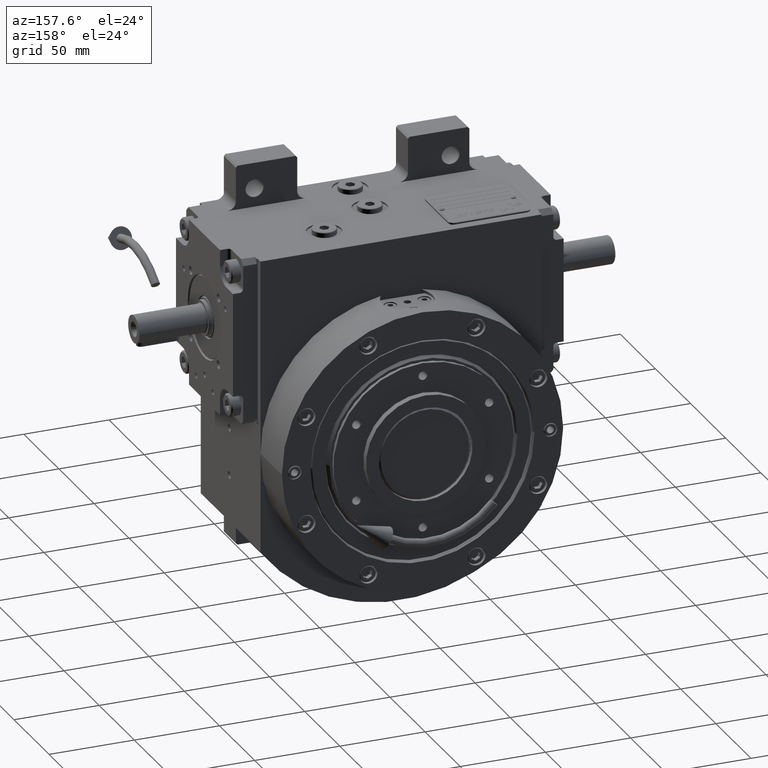
[diagram: clean part render]
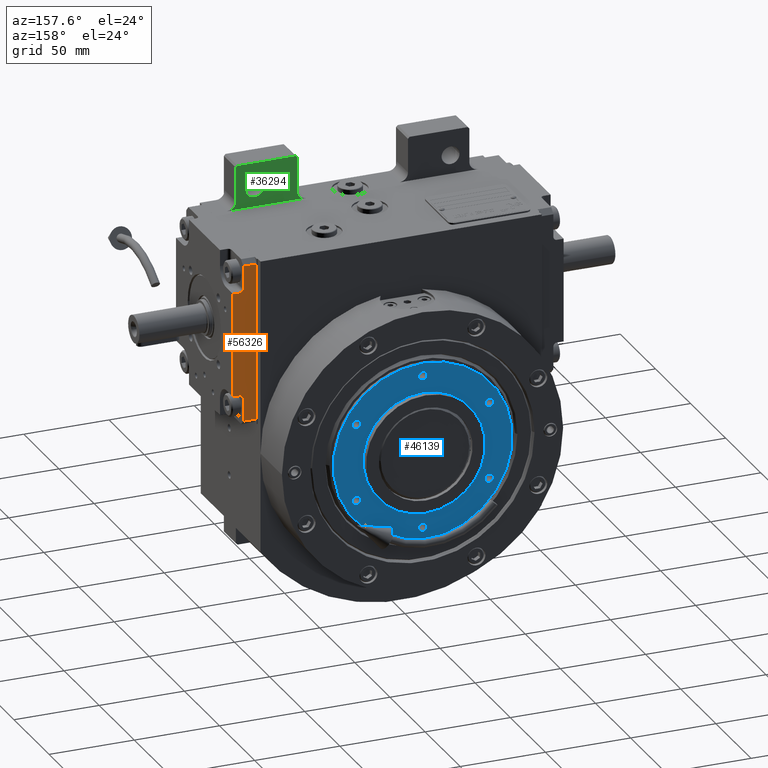
[diagram: same view with three faces highlighted in distinct colors, each labeled with its STEP entity id]
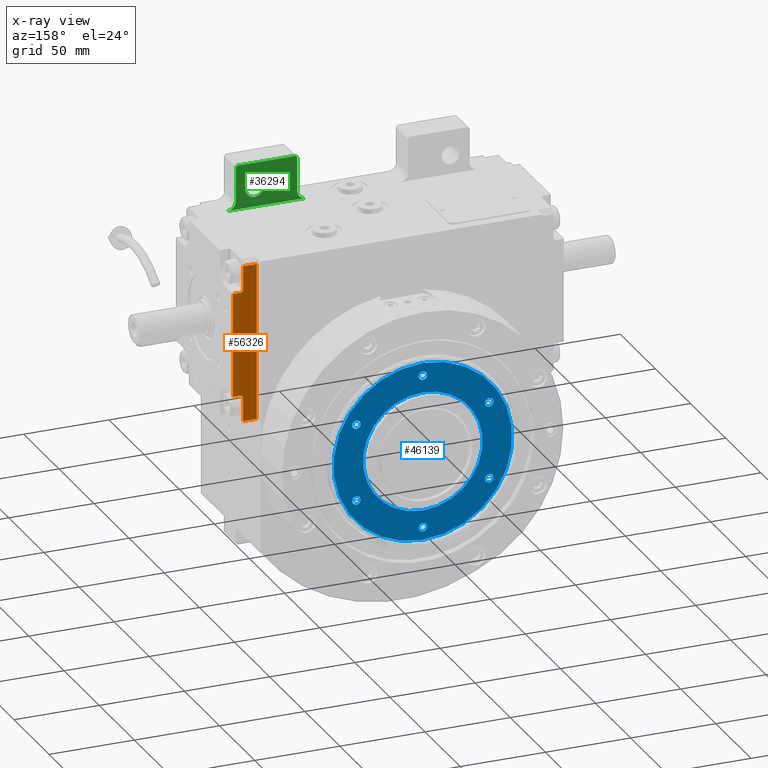
[diagram: x-ray of the same camera — body ghosted, the three highlighted faces saturated]
A machine part, auxiliary view with three faces highlighted in distinct colors.
The next image is the same camera in x-ray (body ghosted, the three faces saturated) — at least one of them is partly hidden behind the body in this view.
Their STEP definitions:

[orange] entity #56326 — the highlighted planar face has unit normal (-0, 1, -0).
#706 = EDGE_CURVE ( 'NONE', #50563, #62675, #1008, .T. ) ;
#896 = EDGE_CURVE ( 'NONE', #5100, #62675, #61007, .T. ) ;
#1008 = LINE ( 'NONE', #25572, #62006 ) ;
#1305 = DIRECTION ( 'NONE',  ( -6.938893903907222067E-15, 3.469446951953611033E-15, -1.000000000000000000 ) ) ;
#1478 = ORIENTED_EDGE ( 'NONE', *, *, #706, .F. ) ;
#2537 = VERTEX_POINT ( 'NONE', #58002 ) ;
#2674 = DIRECTION ( 'NONE',  ( -1.000000000000000000, 2.320366121466569912E-14, 8.437694987151285948E-15 ) ) ;
#2989 = FACE_OUTER_BOUND ( 'NONE', #63631, .T. ) ;
#3503 = LINE ( 'NONE', #18699, #30163 ) ;
#4555 = DIRECTION ( 'NONE',  ( 8.437694987151237039E-15, -2.109423746787905501E-15, 1.000000000000000000 ) ) ;
#5100 = VERTEX_POINT ( 'NONE', #10336 ) ;
#5522 = DIRECTION ( 'NONE',  ( 1.000000000000000000, -2.320366121466573698E-14, 8.437694987151233883E-15 ) ) ;
#6043 = LINE ( 'NONE', #39994, #57207 ) ;
#6573 = CARTESIAN_POINT ( 'NONE',  ( -40.50000000000000000, 1.054711873393898713E-12, -46.00000000000052580 ) ) ;
#6973 = ORIENTED_EDGE ( 'NONE', *, *, #17216, .T. ) ;
#8141 = DIRECTION ( 'NONE',  ( 8.437694987151237039E-15, -2.109423746787905501E-15, 1.000000000000000000 ) ) ;
#10073 = DIRECTION ( 'NONE',  ( -2.320366121466573698E-14, 1.000000000000000000, -2.109423746787906290E-15 ) ) ;
#10325 = VECTOR ( 'NONE', #25456, 1000.000000000000000 ) ;
#10336 = CARTESIAN_POINT ( 'NONE',  ( -40.50000000000000000, -7.999999999998938627, -32.50000000000052580 ) ) ;
#10689 = CARTESIAN_POINT ( 'NONE',  ( -40.49999999999947420, -9.999999999998953726, 32.49999999999947420 ) ) ;
#12037 = DIRECTION ( 'NONE',  ( 2.320366121466573698E-14, -1.000000000000000000, 2.109423746787906290E-15 ) ) ;
#12429 = CARTESIAN_POINT ( 'NONE',  ( -40.49999999999947420, -9.999999999998953726, 30.49999999999947065 ) ) ;
#13755 = CARTESIAN_POINT ( 'NONE',  ( -40.50000000000000000, -7.999999999998938627, -46.00000000000052580 ) ) ;
#13817 = CARTESIAN_POINT ( 'NONE',  ( -40.49999999999947420, -7.999999999998951949, 45.99999999999947420 ) ) ;
#13963 = CARTESIAN_POINT ( 'NONE',  ( -40.50000000000026290, 1.054711873393898713E-12, -49.00000000000052580 ) ) ;
#15193 = VECTOR ( 'NONE', #12037, 1000.000000000000000 ) ;
#16550 = EDGE_CURVE ( 'NONE', #63790, #2537, #28425, .T. ) ;
#17216 = EDGE_CURVE ( 'NONE', #63790, #20444, #6043, .T. ) ;
#17863 = PLANE ( 'NONE',  #28234 ) ;
#18682 = CARTESIAN_POINT ( 'NONE',  ( -40.49999999999973710, -13.99999999999894307, -30.50000000000052580 ) ) ;
#18699 = CARTESIAN_POINT ( 'NONE',  ( -40.50000000000000000, -7.999999999998938627, -46.00000000000052580 ) ) ;
#20444 = VERTEX_POINT ( 'NONE', #13755 ) ;
#20868 = ORIENTED_EDGE ( 'NONE', *, *, #52761, .T. ) ;
#22045 = VERTEX_POINT ( 'NONE', #29993 ) ;
#23219 = DIRECTION ( 'NONE',  ( 8.437694987151237039E-15, -2.109423746787905501E-15, 1.000000000000000000 ) ) ;
#23911 = CARTESIAN_POINT ( 'NONE',  ( -40.50000000000000000, 1.054711873393898713E-12, -46.00000000000052580 ) ) ;
#25456 = DIRECTION ( 'NONE',  ( -2.320366121466573698E-14, 1.000000000000000000, -2.109423746787906290E-15 ) ) ;
#25572 = CARTESIAN_POINT ( 'NONE',  ( -40.49999999999973710, -13.99999999999894307, -30.50000000000052580 ) ) ;
#26077 = VECTOR ( 'NONE', #4555, 1000.000000000000000 ) ;
#26833 = CARTESIAN_POINT ( 'NONE',  ( -40.50000000000000000, -9.999999999998939515, -32.50000000000052580 ) ) ;
#27147 = DIRECTION ( 'NONE',  ( 1.000000000000000000, -2.320366121466573698E-14, 8.437694987151233883E-15 ) ) ;
#28234 = AXIS2_PLACEMENT_3D ( 'NONE', #13963, #2674, #8141 ) ;
#28425 = LINE ( 'NONE', #23911, #42710 ) ;
#29949 = DIRECTION ( 'NONE',  ( 2.320366121466573698E-14, -1.000000000000000000, 2.109423746787906290E-15 ) ) ;
#29993 = CARTESIAN_POINT ( 'NONE',  ( -40.49999999999921130, -13.99999999999895728, 30.49999999999947065 ) ) ;
#30001 = AXIS2_PLACEMENT_3D ( 'NONE', #26833, #27147, #61129 ) ;
#30163 = VECTOR ( 'NONE', #23219, 1000.000000000000000 ) ;
#31121 = CARTESIAN_POINT ( 'NONE',  ( -40.50000000000000000, -9.999999999998939515, -30.50000000000052580 ) ) ;
#31500 = VECTOR ( 'NONE', #52894, 1000.000000000000000 ) ;
#33270 = DIRECTION ( 'NONE',  ( 8.437694987151237039E-15, -2.109423746787905501E-15, 1.000000000000000000 ) ) ;
#33300 = LINE ( 'NONE', #33634, #26077 ) ;
#33303 = ORIENTED_EDGE ( 'NONE', *, *, #45476, .T. ) ;
#33634 = CARTESIAN_POINT ( 'NONE',  ( -40.49999999999947420, -7.999999999998951949, 32.49999999999947420 ) ) ;
#33820 = LINE ( 'NONE', #57749, #31500 ) ;
#36577 = CARTESIAN_POINT ( 'NONE',  ( -40.49999999999947420, -7.999999999998951949, 32.49999999999947420 ) ) ;
#38279 = ORIENTED_EDGE ( 'NONE', *, *, #896, .T. ) ;
#39972 = VERTEX_POINT ( 'NONE', #13817 ) ;
#39994 = CARTESIAN_POINT ( 'NONE',  ( -40.50000000000000000, 1.054711873393898713E-12, -46.00000000000052580 ) ) ;
#41436 = CARTESIAN_POINT ( 'NONE',  ( -40.49999999999947420, 5.273559366969493567E-13, 45.99999999999947420 ) ) ;
#42710 = VECTOR ( 'NONE', #33270, 1000.000000000000000 ) ;
#43144 = EDGE_CURVE ( 'NONE', #51257, #39972, #33300, .T. ) ;
#43366 = ORIENTED_EDGE ( 'NONE', *, *, #47466, .F. ) ;
#44859 = LINE ( 'NONE', #59744, #10325 ) ;
#45476 = EDGE_CURVE ( 'NONE', #50563, #22045, #33820, .T. ) ;
#46116 = EDGE_CURVE ( 'NONE', #54659, #51257, #61512, .T. ) ;
#47466 = EDGE_CURVE ( 'NONE', #2537, #39972, #56318, .T. ) ;
#50563 = VERTEX_POINT ( 'NONE', #18682 ) ;
#51165 = AXIS2_PLACEMENT_3D ( 'NONE', #10689, #5522, #1305 ) ;
#51257 = VERTEX_POINT ( 'NONE', #36577 ) ;
#52761 = EDGE_CURVE ( 'NONE', #22045, #54659, #44859, .T. ) ;
#52894 = DIRECTION ( 'NONE',  ( 8.437694987151237039E-15, -2.109423746787905501E-15, 1.000000000000000000 ) ) ;
#53662 = ORIENTED_EDGE ( 'NONE', *, *, #16550, .F. ) ;
#54659 = VERTEX_POINT ( 'NONE', #12429 ) ;
#56318 = LINE ( 'NONE', #41436, #15193 ) ;
#56326 = ADVANCED_FACE ( 'NONE', ( #2989 ), #17863, .T. ) ;
#56561 = ORIENTED_EDGE ( 'NONE', *, *, #46116, .T. ) ;
#57207 = VECTOR ( 'NONE', #29949, 1000.000000000000000 ) ;
#57749 = CARTESIAN_POINT ( 'NONE',  ( -40.49999999999973710, -13.99999999999894307, -30.50000000000052580 ) ) ;
#58002 = CARTESIAN_POINT ( 'NONE',  ( -40.49999999999947420, 5.273559366969493567E-13, 45.99999999999947420 ) ) ;
#59744 = CARTESIAN_POINT ( 'NONE',  ( -40.49999999999921130, -13.99999999999895728, 30.49999999999947065 ) ) ;
#60191 = EDGE_CURVE ( 'NONE', #20444, #5100, #3503, .T. ) ;
#61007 = CIRCLE ( 'NONE', #30001, 2.000000000000000000 ) ;
#61129 = DIRECTION ( 'NONE',  ( -2.428612866367529932E-14, 1.000000000000000000, -3.469446951953614189E-15 ) ) ;
#61512 = CIRCLE ( 'NONE', #51165, 2.000000000000001776 ) ;
#62006 = VECTOR ( 'NONE', #10073, 1000.000000000000000 ) ;
#62675 = VERTEX_POINT ( 'NONE', #31121 ) ;
#63631 = EDGE_LOOP ( 'NONE', ( #33303, #20868, #56561, #63791, #43366, #53662, #6973, #63736, #38279, #1478 ) ) ;
#63736 = ORIENTED_EDGE ( 'NONE', *, *, #60191, .T. ) ;
#63790 = VERTEX_POINT ( 'NONE', #6573 ) ;
#63791 = ORIENTED_EDGE ( 'NONE', *, *, #43144, .T. ) ;

[blue] entity #46139 — the highlighted planar face has unit normal (0, -1, -0).
#985 = FACE_BOUND ( 'NONE', #42043, .T. ) ;
#1522 = CIRCLE ( 'NONE', #58326, 2.500000000000002220 ) ;
#1667 = CARTESIAN_POINT ( 'NONE',  ( -42.50000000000000000, 89.00000000000000000, 1.836909530733676328E-15 ) ) ;
#1836 = AXIS2_PLACEMENT_3D ( 'NONE', #13762, #8905, #35388 ) ;
#2367 = CARTESIAN_POINT ( 'NONE',  ( -22.50000000000000000, 89.00000000000000000, -38.97114317030001729 ) ) ;
#2750 = ORIENTED_EDGE ( 'NONE', *, *, #6496, .F. ) ;
#2771 = CIRCLE ( 'NONE', #38917, 35.00000000000000000 ) ;
#4615 = CARTESIAN_POINT ( 'NONE',  ( 22.50000000000000000, 89.00000000000000000, 38.97114317029975439 ) ) ;
#5112 = EDGE_LOOP ( 'NONE', ( #36984, #27331 ) ) ;
#5431 = VERTEX_POINT ( 'NONE', #47780 ) ;
#5532 = VERTEX_POINT ( 'NONE', #45478 ) ;
#6117 = ORIENTED_EDGE ( 'NONE', *, *, #37336, .F. ) ;
#6134 = EDGE_LOOP ( 'NONE', ( #2750, #6117 ) ) ;
#6141 = CIRCLE ( 'NONE', #54656, 2.500000000000002220 ) ;
#6469 = DIRECTION ( 'NONE',  ( -1.000000000000000000, 1.836909530733564901E-16, 0.000000000000000000 ) ) ;
#6475 = ORIENTED_EDGE ( 'NONE', *, *, #50518, .F. ) ;
#6496 = EDGE_CURVE ( 'NONE', #27449, #14569, #26878, .T. ) ;
#6732 = AXIS2_PLACEMENT_3D ( 'NONE', #8605, #28314, #53548 ) ;
#6821 = DIRECTION ( 'NONE',  ( 0.000000000000000000, 1.000000000000000000, -1.685188701288034302E-33 ) ) ;
#7029 = CIRCLE ( 'NONE', #58628, 2.499999999999998668 ) ;
#8142 = ORIENTED_EDGE ( 'NONE', *, *, #42143, .F. ) ;
#8313 = CARTESIAN_POINT ( 'NONE',  ( 20.00000000000000000, 89.00000000000000000, -38.97114317029975439 ) ) ;
#8605 = CARTESIAN_POINT ( 'NONE',  ( 1.776356839400252042E-14, 89.00000000000000000, 7.494178599599612151E-27 ) ) ;
#8802 = DIRECTION ( 'NONE',  ( 0.000000000000000000, -1.000000000000000000, 1.685188701288034302E-33 ) ) ;
#8905 = DIRECTION ( 'NONE',  ( 0.000000000000000000, 1.000000000000000000, -1.685188701288034302E-33 ) ) ;
#9263 = CARTESIAN_POINT ( 'NONE',  ( 25.00000000000000000, 89.00000000000000000, -38.97114317029975439 ) ) ;
#9430 = DIRECTION ( 'NONE',  ( 1.000000000000000000, 0.000000000000000000, 0.000000000000000000 ) ) ;
#9640 = VERTEX_POINT ( 'NONE', #51103 ) ;
#10151 = CARTESIAN_POINT ( 'NONE',  ( -20.00000000000000000, 89.00000000000000000, -38.97114317030001729 ) ) ;
#10632 = ORIENTED_EDGE ( 'NONE', *, *, #52597, .F. ) ;
#11253 = CARTESIAN_POINT ( 'NONE',  ( 2.131628207280341894E-14, 89.00000000000000000, 7.105427357608502348E-15 ) ) ;
#12305 = EDGE_CURVE ( 'NONE', #9640, #42671, #35941, .T. ) ;
#13291 = VERTEX_POINT ( 'NONE', #8313 ) ;
#13762 = CARTESIAN_POINT ( 'NONE',  ( -22.50000000000000000, 89.00000000000000000, 38.97114317029949149 ) ) ;
#14569 = VERTEX_POINT ( 'NONE', #10151 ) ;
#14877 = DIRECTION ( 'NONE',  ( 0.000000000000000000, 1.000000000000000000, -1.685188701288034302E-33 ) ) ;
#15151 = DIRECTION ( 'NONE',  ( 1.000000000000000000, -2.643388153869420311E-16, 0.000000000000000000 ) ) ;
#15866 = FACE_BOUND ( 'NONE', #48950, .T. ) ;
#16968 = CARTESIAN_POINT ( 'NONE',  ( -25.00000000000000000, 89.00000000000000000, -38.97114317030001729 ) ) ;
#17357 = EDGE_CURVE ( 'NONE', #40624, #5532, #1522, .T. ) ;
#17432 = EDGE_CURVE ( 'NONE', #19972, #44117, #35573, .T. ) ;
#17437 = DIRECTION ( 'NONE',  ( -1.000000000000000000, 0.000000000000000000, 0.000000000000000000 ) ) ;
#17812 = DIRECTION ( 'NONE',  ( 1.000000000000000000, 0.000000000000000000, 0.000000000000000000 ) ) ;
#18247 = EDGE_LOOP ( 'NONE', ( #26715, #10632 ) ) ;
#18529 = DIRECTION ( 'NONE',  ( 0.000000000000000000, 1.000000000000000000, -1.685188701288034302E-33 ) ) ;
#18551 = VERTEX_POINT ( 'NONE', #61693 ) ;
#18608 = ORIENTED_EDGE ( 'NONE', *, *, #35166, .F. ) ;
#18709 = DIRECTION ( 'NONE',  ( 1.000000000000000000, 0.000000000000000000, 0.000000000000000000 ) ) ;
#18826 = VERTEX_POINT ( 'NONE', #39040 ) ;
#19185 = DIRECTION ( 'NONE',  ( 0.000000000000000000, 1.000000000000000000, -1.685188701288034302E-33 ) ) ;
#19485 = EDGE_CURVE ( 'NONE', #62010, #13291, #7029, .T. ) ;
#19749 = EDGE_LOOP ( 'NONE', ( #6475, #27872 ) ) ;
#19972 = VERTEX_POINT ( 'NONE', #36822 ) ;
#20313 = VERTEX_POINT ( 'NONE', #62575 ) ;
#20409 = FACE_BOUND ( 'NONE', #29644, .T. ) ;
#20630 = ORIENTED_EDGE ( 'NONE', *, *, #33000, .F. ) ;
#20937 = EDGE_CURVE ( 'NONE', #5532, #40624, #6141, .T. ) ;
#21026 = FACE_OUTER_BOUND ( 'NONE', #5112, .T. ) ;
#21092 = ORIENTED_EDGE ( 'NONE', *, *, #17357, .F. ) ;
#22070 = EDGE_LOOP ( 'NONE', ( #39957, #61093 ) ) ;
#23561 = VERTEX_POINT ( 'NONE', #54604 ) ;
#23672 = DIRECTION ( 'NONE',  ( 0.000000000000000000, 1.000000000000000000, -1.685188701288034302E-33 ) ) ;
#25525 = CARTESIAN_POINT ( 'NONE',  ( -22.50000000000000000, 89.00000000000000000, -38.97114317030001729 ) ) ;
#25804 = CIRCLE ( 'NONE', #27873, 2.499999999999998668 ) ;
#25854 = CARTESIAN_POINT ( 'NONE',  ( 1.635767019581042183E-14, 89.00000000000000000, 7.494178599599612151E-27 ) ) ;
#26715 = ORIENTED_EDGE ( 'NONE', *, *, #12305, .F. ) ;
#26878 = CIRCLE ( 'NONE', #29975, 2.499999999999998668 ) ;
#26911 = DIRECTION ( 'NONE',  ( 1.000000000000000000, 0.000000000000000000, 0.000000000000000000 ) ) ;
#27331 = ORIENTED_EDGE ( 'NONE', *, *, #45016, .T. ) ;
#27345 = AXIS2_PLACEMENT_3D ( 'NONE', #58901, #23672, #9430 ) ;
#27413 = CARTESIAN_POINT ( 'NONE',  ( 45.00000000000000000, 89.00000000000000000, 7.494178599599612151E-27 ) ) ;
#27449 = VERTEX_POINT ( 'NONE', #16968 ) ;
#27872 = ORIENTED_EDGE ( 'NONE', *, *, #19485, .F. ) ;
#27873 = AXIS2_PLACEMENT_3D ( 'NONE', #38420, #53924, #18709 ) ;
#28314 = DIRECTION ( 'NONE',  ( -2.706829469562285187E-16, -1.000000000000000000, -6.062552332133027738E-33 ) ) ;
#28345 = DIRECTION ( 'NONE',  ( -1.000000000000000000, 0.000000000000000000, 0.000000000000000000 ) ) ;
#28512 = DIRECTION ( 'NONE',  ( 1.000000000000000000, 0.000000000000000000, 1.224646799147351728E-16 ) ) ;
#28838 = DIRECTION ( 'NONE',  ( 1.000000000000000000, 0.000000000000000000, -1.776356839400242675E-16 ) ) ;
#29644 = EDGE_LOOP ( 'NONE', ( #59692, #21092 ) ) ;
#29822 = CARTESIAN_POINT ( 'NONE',  ( 25.00000000000000000, 89.00000000000000000, 38.97114317029975439 ) ) ;
#29975 = AXIS2_PLACEMENT_3D ( 'NONE', #25525, #14877, #45250 ) ;
#30947 = DIRECTION ( 'NONE',  ( 0.000000000000000000, 1.000000000000000000, -1.685188701288034302E-33 ) ) ;
#31458 = AXIS2_PLACEMENT_3D ( 'NONE', #45934, #6821, #51098 ) ;
#31657 = CARTESIAN_POINT ( 'NONE',  ( -52.50000000000000000, 89.00000000000000000, -4.286263797015911623E-15 ) ) ;
#32449 = CIRCLE ( 'NONE', #61420, 52.50000000000000000 ) ;
#32461 = CIRCLE ( 'NONE', #31458, 2.499999999999998668 ) ;
#32990 = AXIS2_PLACEMENT_3D ( 'NONE', #47146, #37109, #28345 ) ;
#33000 = EDGE_CURVE ( 'NONE', #18551, #20313, #58339, .T. ) ;
#33142 = EDGE_CURVE ( 'NONE', #44117, #19972, #32461, .T. ) ;
#33568 = CIRCLE ( 'NONE', #6732, 52.50000000000000000 ) ;
#33605 = CARTESIAN_POINT ( 'NONE',  ( 22.50000000000000000, 89.00000000000000000, -38.97114317029975439 ) ) ;
#33690 = CARTESIAN_POINT ( 'NONE',  ( 2.486899575160352859E-14, 89.00000000000000000, 7.494178599599612151E-27 ) ) ;
#34211 = CARTESIAN_POINT ( 'NONE',  ( 1.776356839400252042E-14, 89.00000000000000000, 7.494178599599612151E-27 ) ) ;
#34339 = DIRECTION ( 'NONE',  ( 0.000000000000000000, 1.000000000000000000, -1.685188701288034302E-33 ) ) ;
#35166 = EDGE_CURVE ( 'NONE', #5431, #23561, #2771, .T. ) ;
#35388 = DIRECTION ( 'NONE',  ( -1.000000000000000000, 0.000000000000000000, 0.000000000000000000 ) ) ;
#35573 = CIRCLE ( 'NONE', #46980, 2.499999999999998668 ) ;
#35578 = PLANE ( 'NONE',  #42906 ) ;
#35941 = CIRCLE ( 'NONE', #1836, 2.499999999999998668 ) ;
#36822 = CARTESIAN_POINT ( 'NONE',  ( 20.00000000000000000, 89.00000000000000000, 38.97114317029975439 ) ) ;
#36830 = DIRECTION ( 'NONE',  ( 0.000000000000000000, 1.000000000000000000, -1.685188701288034302E-33 ) ) ;
#36984 = ORIENTED_EDGE ( 'NONE', *, *, #45477, .F. ) ;
#37109 = DIRECTION ( 'NONE',  ( 0.000000000000000000, 1.000000000000000000, -1.685188701288034302E-33 ) ) ;
#37336 = EDGE_CURVE ( 'NONE', #14569, #27449, #63925, .T. ) ;
#38420 = CARTESIAN_POINT ( 'NONE',  ( -22.50000000000000000, 89.00000000000000000, 38.97114317029949149 ) ) ;
#38917 = AXIS2_PLACEMENT_3D ( 'NONE', #11253, #30947, #50680 ) ;
#39040 = CARTESIAN_POINT ( 'NONE',  ( 52.50000000000000000, 89.00000000000000000, 2.143131898515351383E-15 ) ) ;
#39957 = ORIENTED_EDGE ( 'NONE', *, *, #17432, .F. ) ;
#40624 = VERTEX_POINT ( 'NONE', #1667 ) ;
#42043 = EDGE_LOOP ( 'NONE', ( #8142, #20630 ) ) ;
#42143 = EDGE_CURVE ( 'NONE', #20313, #18551, #61146, .T. ) ;
#42671 = VERTEX_POINT ( 'NONE', #57097 ) ;
#42906 = AXIS2_PLACEMENT_3D ( 'NONE', #25854, #55297, #6469 ) ;
#44117 = VERTEX_POINT ( 'NONE', #29822 ) ;
#44766 = VERTEX_POINT ( 'NONE', #31657 ) ;
#44961 = FACE_BOUND ( 'NONE', #19749, .T. ) ;
#45016 = EDGE_CURVE ( 'NONE', #18826, #44766, #32449, .T. ) ;
#45250 = DIRECTION ( 'NONE',  ( -1.000000000000000000, 0.000000000000000000, 0.000000000000000000 ) ) ;
#45278 = FACE_BOUND ( 'NONE', #18247, .T. ) ;
#45477 = EDGE_CURVE ( 'NONE', #18826, #44766, #33568, .T. ) ;
#45478 = CARTESIAN_POINT ( 'NONE',  ( -47.50000000000000000, 89.00000000000000000, 1.568889089120798256E-15 ) ) ;
#45934 = CARTESIAN_POINT ( 'NONE',  ( 22.50000000000000000, 89.00000000000000000, 38.97114317029975439 ) ) ;
#45940 = DIRECTION ( 'NONE',  ( 2.706829469562285187E-16, 1.000000000000000000, 6.062552332133027738E-33 ) ) ;
#46139 = ADVANCED_FACE ( 'NONE', ( #44961, #60139, #20409, #45278, #60467, #985, #21026, #15866 ), #35578, .F. ) ;
#46435 = ORIENTED_EDGE ( 'NONE', *, *, #50957, .T. ) ;
#46470 = CIRCLE ( 'NONE', #32990, 2.499999999999998668 ) ;
#46980 = AXIS2_PLACEMENT_3D ( 'NONE', #4615, #18529, #48265 ) ;
#47146 = CARTESIAN_POINT ( 'NONE',  ( 22.50000000000000000, 89.00000000000000000, -38.97114317029975439 ) ) ;
#47780 = CARTESIAN_POINT ( 'NONE',  ( 35.00000000000000000, 89.00000000000000000, 4.286263797015911623E-15 ) ) ;
#48265 = DIRECTION ( 'NONE',  ( -1.000000000000000000, 0.000000000000000000, 0.000000000000000000 ) ) ;
#48414 = AXIS2_PLACEMENT_3D ( 'NONE', #2367, #55719, #26911 ) ;
#48950 = EDGE_LOOP ( 'NONE', ( #18608, #46435 ) ) ;
#49230 = CARTESIAN_POINT ( 'NONE',  ( -45.00000000000000000, 89.00000000000000000, -1.972152263052529514E-28 ) ) ;
#50477 = AXIS2_PLACEMENT_3D ( 'NONE', #33690, #8802, #28512 ) ;
#50518 = EDGE_CURVE ( 'NONE', #13291, #62010, #46470, .T. ) ;
#50680 = DIRECTION ( 'NONE',  ( 1.000000000000000000, 0.000000000000000000, -8.054753030243562461E-17 ) ) ;
#50957 = EDGE_CURVE ( 'NONE', #5431, #23561, #51475, .T. ) ;
#51098 = DIRECTION ( 'NONE',  ( 1.000000000000000000, 0.000000000000000000, 0.000000000000000000 ) ) ;
#51103 = CARTESIAN_POINT ( 'NONE',  ( -25.00000000000000000, 89.00000000000000000, 38.97114317029949149 ) ) ;
#51475 = CIRCLE ( 'NONE', #50477, 35.00000000000000000 ) ;
#51795 = AXIS2_PLACEMENT_3D ( 'NONE', #27413, #36830, #17437 ) ;
#52597 = EDGE_CURVE ( 'NONE', #42671, #9640, #25804, .T. ) ;
#53548 = DIRECTION ( 'NONE',  ( 1.000000000000000000, -2.643388153869420311E-16, 0.000000000000000000 ) ) ;
#53924 = DIRECTION ( 'NONE',  ( 0.000000000000000000, 1.000000000000000000, -1.685188701288034302E-33 ) ) ;
#54604 = CARTESIAN_POINT ( 'NONE',  ( -35.00000000000000000, 89.00000000000000000, -5.715018396020886806E-15 ) ) ;
#54656 = AXIS2_PLACEMENT_3D ( 'NONE', #49230, #19185, #58616 ) ;
#55297 = DIRECTION ( 'NONE',  ( -1.836909530733564901E-16, -1.000000000000000000, -5.954631203350559886E-33 ) ) ;
#55719 = DIRECTION ( 'NONE',  ( 0.000000000000000000, 1.000000000000000000, -1.685188701288034302E-33 ) ) ;
#57097 = CARTESIAN_POINT ( 'NONE',  ( -20.00000000000000000, 89.00000000000000000, 38.97114317029949149 ) ) ;
#57551 = DIRECTION ( 'NONE',  ( 0.000000000000000000, 1.000000000000000000, -1.685188701288034302E-33 ) ) ;
#57954 = CARTESIAN_POINT ( 'NONE',  ( -45.00000000000000000, 89.00000000000000000, 4.440892098500137068E-16 ) ) ;
#58326 = AXIS2_PLACEMENT_3D ( 'NONE', #57954, #34339, #28838 ) ;
#58339 = CIRCLE ( 'NONE', #27345, 2.500000000000002220 ) ;
#58616 = DIRECTION ( 'NONE',  ( -1.000000000000000000, 0.000000000000000000, 0.000000000000000000 ) ) ;
#58628 = AXIS2_PLACEMENT_3D ( 'NONE', #33605, #57551, #17812 ) ;
#58901 = CARTESIAN_POINT ( 'NONE',  ( 45.00000000000000000, 89.00000000000000000, 7.494178599599612151E-27 ) ) ;
#59692 = ORIENTED_EDGE ( 'NONE', *, *, #20937, .F. ) ;
#60139 = FACE_BOUND ( 'NONE', #6134, .T. ) ;
#60467 = FACE_BOUND ( 'NONE', #22070, .T. ) ;
#61093 = ORIENTED_EDGE ( 'NONE', *, *, #33142, .F. ) ;
#61146 = CIRCLE ( 'NONE', #51795, 2.500000000000002220 ) ;
#61420 = AXIS2_PLACEMENT_3D ( 'NONE', #34211, #45940, #15151 ) ;
#61693 = CARTESIAN_POINT ( 'NONE',  ( 47.50000000000000000, 89.00000000000000000, 7.494178599599612151E-27 ) ) ;
#62010 = VERTEX_POINT ( 'NONE', #9263 ) ;
#62575 = CARTESIAN_POINT ( 'NONE',  ( 42.50000000000000000, 89.00000000000000000, -2.680204416053838929E-16 ) ) ;
#63925 = CIRCLE ( 'NONE', #48414, 2.499999999999998668 ) ;

[green] entity #36294 — the highlighted planar face has unit normal (0, -1, 0).
#594 = CARTESIAN_POINT ( 'NONE',  ( 68.50000000000000000, -24.50000000000000000, 119.0000000000000000 ) ) ;
#1239 = DIRECTION ( 'NONE',  ( -1.000000000000000000, 0.000000000000000000, 0.000000000000000000 ) ) ;
#3174 = CARTESIAN_POINT ( 'NONE',  ( 68.50000000000000000, -24.50000000000000000, 119.0000000000000000 ) ) ;
#3355 = CARTESIAN_POINT ( 'NONE',  ( 32.49999999999934630, -24.50000000000000000, 139.0000000000000000 ) ) ;
#4119 = DIRECTION ( 'NONE',  ( 1.000000000000000000, 0.000000000000000000, 0.000000000000000000 ) ) ;
#4653 = VECTOR ( 'NONE', #23395, 1000.000000000000114 ) ;
#5748 = EDGE_CURVE ( 'NONE', #14633, #37516, #55823, .T. ) ;
#6095 = DIRECTION ( 'NONE',  ( 0.000000000000000000, -1.000000000000000000, 0.000000000000000000 ) ) ;
#6804 = DIRECTION ( 'NONE',  ( 0.000000000000000000, 1.000000000000000000, 0.000000000000000000 ) ) ;
#7001 = VERTEX_POINT ( 'NONE', #30279 ) ;
#7332 = ORIENTED_EDGE ( 'NONE', *, *, #45113, .F. ) ;
#7726 = ORIENTED_EDGE ( 'NONE', *, *, #45956, .F. ) ;
#8139 = CARTESIAN_POINT ( 'NONE',  ( 62.75000000000000000, -24.50000000000000000, 125.0000000000000000 ) ) ;
#8948 = LINE ( 'NONE', #48398, #13705 ) ;
#9152 = LINE ( 'NONE', #3355, #4653 ) ;
#10952 = PLANE ( 'NONE',  #50400 ) ;
#12014 = CIRCLE ( 'NONE', #28485, 5.000000000000004441 ) ;
#12675 = EDGE_CURVE ( 'NONE', #21956, #7001, #60523, .T. ) ;
#12842 = DIRECTION ( 'NONE',  ( -1.387778780781444492E-15, 0.000000000000000000, -1.000000000000000000 ) ) ;
#13247 = DIRECTION ( 'NONE',  ( 1.000000000000000000, 0.000000000000000000, 5.286776307738843186E-15 ) ) ;
#13705 = VECTOR ( 'NONE', #4119, 1000.000000000000000 ) ;
#14633 = VERTEX_POINT ( 'NONE', #59285 ) ;
#14802 = VERTEX_POINT ( 'NONE', #8139 ) ;
#14906 = DIRECTION ( 'NONE',  ( -1.000000000000000000, 0.000000000000000000, 0.000000000000000000 ) ) ;
#15365 = CARTESIAN_POINT ( 'NONE',  ( 73.50000000000000000, -24.50000000000000000, 119.0000000000000000 ) ) ;
#15636 = AXIS2_PLACEMENT_3D ( 'NONE', #15365, #44456, #25045 ) ;
#15927 = VERTEX_POINT ( 'NONE', #61212 ) ;
#16022 = VECTOR ( 'NONE', #60383, 1000.000000000000000 ) ;
#19214 = VECTOR ( 'NONE', #14906, 1000.000000000000000 ) ;
#19312 = ORIENTED_EDGE ( 'NONE', *, *, #31897, .F. ) ;
#20425 = CARTESIAN_POINT ( 'NONE',  ( 57.50000000000000000, -24.50000000000000000, 125.0000000000000000 ) ) ;
#20946 = LINE ( 'NONE', #594, #16022 ) ;
#21956 = VERTEX_POINT ( 'NONE', #23252 ) ;
#22064 = CIRCLE ( 'NONE', #60274, 5.249999999999997335 ) ;
#23032 = CARTESIAN_POINT ( 'NONE',  ( 68.50000000000000000, -24.50000000000000000, 139.0000000000000000 ) ) ;
#23252 = CARTESIAN_POINT ( 'NONE',  ( 32.49999999999934630, -24.50000000000000000, 139.0000000000000000 ) ) ;
#23395 = DIRECTION ( 'NONE',  ( 0.7071067811865474617, 0.000000000000000000, 0.7071067811865474617 ) ) ;
#25045 = DIRECTION ( 'NONE',  ( -1.000000000000000000, 0.000000000000000000, 0.000000000000000000 ) ) ;
#25907 = DIRECTION ( 'NONE',  ( 0.000000000000000000, 0.000000000000000000, -1.000000000000000000 ) ) ;
#25981 = EDGE_LOOP ( 'NONE', ( #19312, #52725 ) ) ;
#26423 = CARTESIAN_POINT ( 'NONE',  ( 27.49999999999934630, -24.50000000000000000, 119.0000000000000000 ) ) ;
#27252 = AXIS2_PLACEMENT_3D ( 'NONE', #57524, #6804, #13247 ) ;
#27369 = DIRECTION ( 'NONE',  ( 0.000000000000000000, -1.000000000000000000, 0.000000000000000000 ) ) ;
#27429 = ORIENTED_EDGE ( 'NONE', *, *, #62112, .F. ) ;
#28308 = VECTOR ( 'NONE', #55501, 1000.000000000000114 ) ;
#28485 = AXIS2_PLACEMENT_3D ( 'NONE', #26423, #27369, #12842 ) ;
#30279 = CARTESIAN_POINT ( 'NONE',  ( 32.49999999999934630, -24.50000000000000000, 119.0000000000000000 ) ) ;
#30461 = CARTESIAN_POINT ( 'NONE',  ( 33.49999999999934630, -24.50000000000000000, 140.0000000000000000 ) ) ;
#30536 = EDGE_CURVE ( 'NONE', #21956, #45514, #9152, .T. ) ;
#30642 = CARTESIAN_POINT ( 'NONE',  ( 0.000000000000000000, -24.50000000000000000, 0.000000000000000000 ) ) ;
#31897 = EDGE_CURVE ( 'NONE', #14802, #60209, #63406, .T. ) ;
#35427 = ORIENTED_EDGE ( 'NONE', *, *, #41567, .T. ) ;
#35511 = FACE_BOUND ( 'NONE', #25981, .T. ) ;
#35641 = CARTESIAN_POINT ( 'NONE',  ( 32.49999999999934630, -24.50000000000000000, 139.0000000000000000 ) ) ;
#35792 = CARTESIAN_POINT ( 'NONE',  ( 67.50000000000000000, -24.50000000000000000, 140.0000000000000000 ) ) ;
#36294 = ADVANCED_FACE ( 'NONE', ( #35511, #55233 ), #10952, .F. ) ;
#37516 = VERTEX_POINT ( 'NONE', #23032 ) ;
#38218 = CARTESIAN_POINT ( 'NONE',  ( 73.50000000000000000, -24.50000000000000000, 114.0000000000000000 ) ) ;
#39719 = ORIENTED_EDGE ( 'NONE', *, *, #30536, .T. ) ;
#41228 = VERTEX_POINT ( 'NONE', #3174 ) ;
#41567 = EDGE_CURVE ( 'NONE', #41228, #49596, #52808, .T. ) ;
#43684 = CARTESIAN_POINT ( 'NONE',  ( 67.50000000000000000, -24.50000000000000000, 140.0000000000000000 ) ) ;
#43702 = DIRECTION ( 'NONE',  ( -1.000000000000000000, 0.000000000000000000, 5.286776307738843186E-15 ) ) ;
#43872 = ORIENTED_EDGE ( 'NONE', *, *, #46785, .T. ) ;
#44456 = DIRECTION ( 'NONE',  ( 0.000000000000000000, -1.000000000000000000, 0.000000000000000000 ) ) ;
#44640 = LINE ( 'NONE', #43684, #19214 ) ;
#45113 = EDGE_CURVE ( 'NONE', #41228, #37516, #20946, .T. ) ;
#45514 = VERTEX_POINT ( 'NONE', #30461 ) ;
#45606 = EDGE_LOOP ( 'NONE', ( #7332, #35427, #27429, #43872, #61477, #39719, #7726, #50534 ) ) ;
#45956 = EDGE_CURVE ( 'NONE', #14633, #45514, #44640, .T. ) ;
#46785 = EDGE_CURVE ( 'NONE', #15927, #7001, #12014, .T. ) ;
#48398 = CARTESIAN_POINT ( 'NONE',  ( 27.49999999999934630, -24.50000000000000000, 114.0000000000000000 ) ) ;
#49596 = VERTEX_POINT ( 'NONE', #38218 ) ;
#50400 = AXIS2_PLACEMENT_3D ( 'NONE', #30642, #6095, #1239 ) ;
#50534 = ORIENTED_EDGE ( 'NONE', *, *, #5748, .T. ) ;
#51434 = VECTOR ( 'NONE', #25907, 1000.000000000000000 ) ;
#52725 = ORIENTED_EDGE ( 'NONE', *, *, #62939, .F. ) ;
#52808 = CIRCLE ( 'NONE', #15636, 5.000000000000004441 ) ;
#53916 = CARTESIAN_POINT ( 'NONE',  ( 52.25000000000000000, -24.50000000000000000, 125.0000000000000000 ) ) ;
#55233 = FACE_OUTER_BOUND ( 'NONE', #45606, .T. ) ;
#55501 = DIRECTION ( 'NONE',  ( 0.7071067811865474617, 0.000000000000000000, -0.7071067811865474617 ) ) ;
#55823 = LINE ( 'NONE', #35792, #28308 ) ;
#57524 = CARTESIAN_POINT ( 'NONE',  ( 57.50000000000000000, -24.50000000000000000, 125.0000000000000000 ) ) ;
#59285 = CARTESIAN_POINT ( 'NONE',  ( 67.50000000000000000, -24.50000000000000000, 140.0000000000000000 ) ) ;
#59855 = DIRECTION ( 'NONE',  ( 0.000000000000000000, 1.000000000000000000, 0.000000000000000000 ) ) ;
#60209 = VERTEX_POINT ( 'NONE', #53916 ) ;
#60274 = AXIS2_PLACEMENT_3D ( 'NONE', #20425, #59855, #43702 ) ;
#60383 = DIRECTION ( 'NONE',  ( 0.000000000000000000, 0.000000000000000000, 1.000000000000000000 ) ) ;
#60523 = LINE ( 'NONE', #35641, #51434 ) ;
#61212 = CARTESIAN_POINT ( 'NONE',  ( 27.49999999999934630, -24.50000000000000000, 114.0000000000000000 ) ) ;
#61477 = ORIENTED_EDGE ( 'NONE', *, *, #12675, .F. ) ;
#62112 = EDGE_CURVE ( 'NONE', #15927, #49596, #8948, .T. ) ;
#62939 = EDGE_CURVE ( 'NONE', #60209, #14802, #22064, .T. ) ;
#63406 = CIRCLE ( 'NONE', #27252, 5.249999999999997335 ) ;